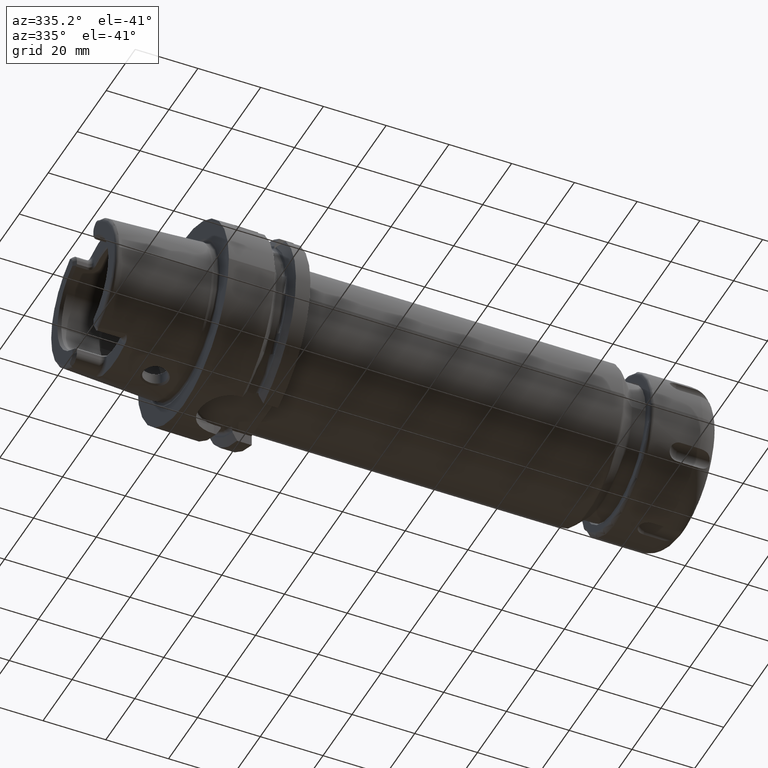
[diagram: clean part render]
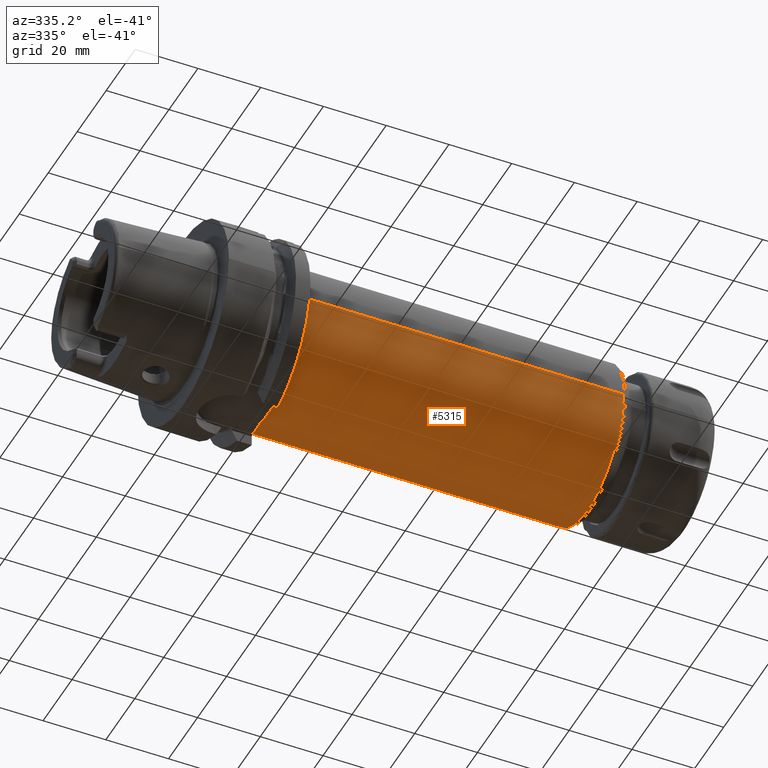
[diagram: same view with one face highlighted and labeled with its STEP entity id]
A machine part, auxiliary view. The second image highlights one B-rep face of the part: STEP entity #5315.
In plain terms, the highlighted cylindrical surface (partial cylindrical patch) has radius 25 mm, axis along (1, 0, 0).
Its self-contained STEP definition (entity closure, byte-faithful):
#1986=CARTESIAN_POINT('',(1.287567864376E2,0.E0,0.E0));
#1987=DIRECTION('',(-1.E0,0.E0,0.E0));
#1988=DIRECTION('',(0.E0,1.E0,0.E0));
#1989=AXIS2_PLACEMENT_3D('',#1986,#1987,#1988);
#1991=DIRECTION('',(-1.E0,0.E0,0.E0));
#1992=VECTOR('',#1991,1.017567864376E2);
#1993=CARTESIAN_POINT('',(1.287567864376E2,2.5E1,-1.084437209841E-13));
#1994=LINE('',#1993,#1992);
#1995=CARTESIAN_POINT('',(2.7E1,0.E0,0.E0));
#1996=DIRECTION('',(1.E0,0.E0,0.E0));
#1997=DIRECTION('',(0.E0,-1.E0,0.E0));
#1998=AXIS2_PLACEMENT_3D('',#1995,#1996,#1997);
#2000=DIRECTION('',(-1.E0,0.E0,0.E0));
#2001=VECTOR('',#2000,1.017567864376E2);
#2002=CARTESIAN_POINT('',(1.287567864376E2,-2.5E1,1.021291195379E-13));
#2003=LINE('',#2002,#2001);
#3120=CARTESIAN_POINT('',(2.7E1,-2.5E1,0.E0));
#3121=CARTESIAN_POINT('',(2.7E1,2.5E1,0.E0));
#3122=VERTEX_POINT('',#3120);
#3123=VERTEX_POINT('',#3121);
#3132=CARTESIAN_POINT('',(1.287567864376E2,2.5E1,0.E0));
#3133=CARTESIAN_POINT('',(1.287567864376E2,-2.5E1,0.E0));
#3134=VERTEX_POINT('',#3132);
#3135=VERTEX_POINT('',#3133);
#5304=CARTESIAN_POINT('',(1.971645E1,0.E0,0.E0));
#5305=DIRECTION('',(1.E0,0.E0,0.E0));
#5306=DIRECTION('',(0.E0,-1.E0,0.E0));
#5307=AXIS2_PLACEMENT_3D('',#5304,#5305,#5306);
#5308=CYLINDRICAL_SURFACE('',#5307,2.5E1);
#5309=ORIENTED_EDGE('',*,*,#5295,.F.);
#5310=ORIENTED_EDGE('',*,*,#5270,.T.);
#5311=ORIENTED_EDGE('',*,*,#5240,.F.);
#5312=ORIENTED_EDGE('',*,*,#5267,.F.);
#5313=EDGE_LOOP('',(#5309,#5310,#5311,#5312));
#5314=FACE_OUTER_BOUND('',#5313,.F.);
#5315=ADVANCED_FACE('',(#5314),#5308,.T.);
#1990=CIRCLE('',#1989,2.5E1);
#1999=CIRCLE('',#1998,2.5E1);
#5240=EDGE_CURVE('',#3122,#3123,#1999,.T.);
#5267=EDGE_CURVE('',#3135,#3122,#2003,.T.);
#5270=EDGE_CURVE('',#3134,#3123,#1994,.T.);
#5295=EDGE_CURVE('',#3134,#3135,#1990,.T.);